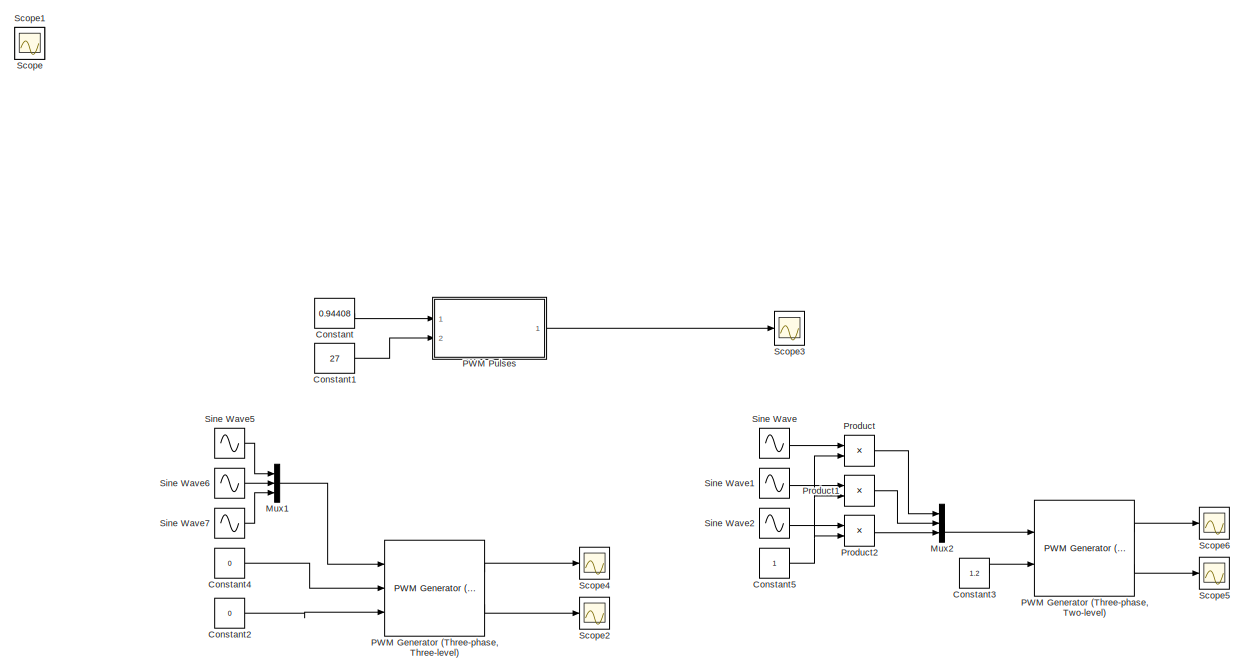
[diagram: root canvas - part 1/2, full width, top band]
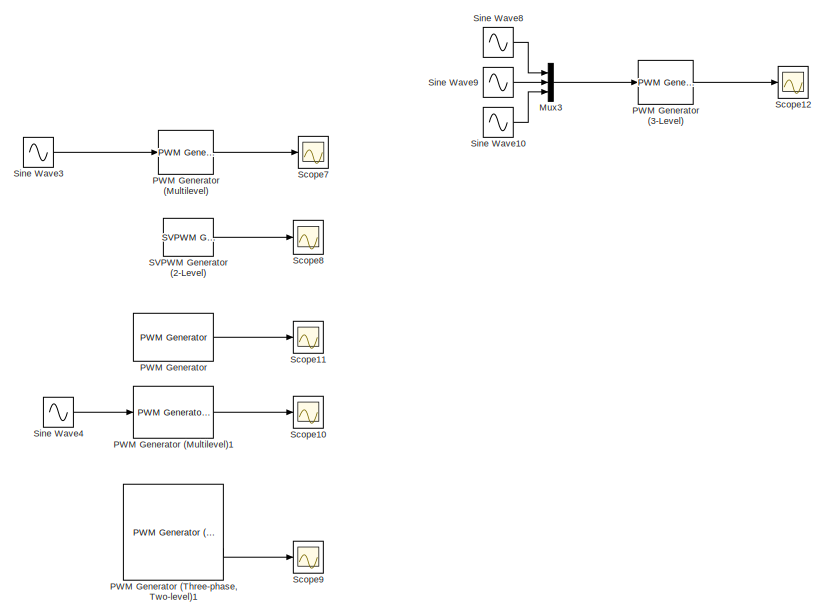
[diagram: root canvas - part 2/2, bottom center region]
MODEL slx_e3dcfff3d5a7
KIND model
CONFIG AbsTol = auto
CONFIG EnableMultiTasking = off
CONFIG FixedStep = 0.001
CONFIG MaxStep = auto
CONFIG MinStep = auto
CONFIG RelTol = 1e-3
CONFIG SampleTimeConstraint = Unconstrained
CONFIG SolverName = FixedStepAuto
CONFIG StartTime = 0.0
CONFIG StopTime = 5
WORKSPACE source: mxarray member
WORKSPACE Mf = 50
WORKSPACE mf = 1
WORKSPACE mf1 = 1
BLOCK [Constant] Constant
  Value = 0.94408
BLOCK [Constant] Constant1
  Value = 27
BLOCK [Constant] Constant2
  Commented = on
  Value = 0
BLOCK [Constant] Constant3
  Commented = on
  Value = 1.2
BLOCK [Constant] Constant4
  Commented = on
  Value = 0
BLOCK [Constant] Constant5
  Commented = on
BLOCK [Mux] Mux1
  Commented = on
  DisplayOption = bar
  Inputs = 3
  Ports = [3, 1]
BLOCK [Mux] Mux2
  Commented = on
  DisplayOption = bar
  Inputs = 3
  Ports = [3, 1]
BLOCK [Mux] Mux3
  Commented = on
  DisplayOption = bar
  Inputs = 3
  Ports = [3, 1]
BLOCK [Reference] PWM Generator  REF=eePwmGenerator/PWM Generator
  Commented = on
  Ports = [1, 1]
  SourceBlock = eePwmGenerator/PWM Generator
  SourceProductBaseCode = PS
  SourceType = PWM Generator
BLOCK [Reference] PWM Generator (3-Level)  REF=powerlib_meascontrol/Pulse & Signal
Generators/PWM Generator
(3-Level)
  Commented = on
  Ports = [1, 1]
  SourceBlock = powerlib_meascontrol/Pulse & Signal\nGenerators/PWM Generator\n(3-Level)
  SourceProductBaseCode = PS
  SourceType = PWM Generator (3-Level)
BLOCK [Reference] PWM Generator (Multilevel)  REF=powerlib_meascontrol/Pulse & Signal
Generators/PWM Generator
(Multilevel)
  Commented = on
  Ports = [1, 1]
  SourceBlock = powerlib_meascontrol/Pulse & Signal\nGenerators/PWM Generator\n(Multilevel)
  SourceProductBaseCode = PS
  SourceType = PWM Generator (Multilevel)
BLOCK [Reference] PWM Generator (Multilevel)1  REF=eePwmGeneratorMultilevel/PWM Generator
(Multilevel)
  Commented = on
  Ports = [1, 1]
  SourceBlock = eePwmGeneratorMultilevel/PWM Generator\n(Multilevel)
  SourceProductBaseCode = PS
  SourceType = PWM Generator (Multilevel)
BLOCK [Reference] PWM Generator (Three-phase, Three-level)  REF=eePwmGeneratorThreeLevel/PWM Generator
(Three-phase, Three-level)
  Commented = on
  Ports = [3, 2]
  SourceBlock = eePwmGeneratorThreeLevel/PWM Generator\n(Three-phase, Three-level)
  SourceProductBaseCode = PS
  SourceType = PWM Generator (three-phase, three-level)
BLOCK [Reference] PWM Generator (Three-phase, Two-level)  REF=eePwmGeneratorTwoLevel/PWM Generator
(Three-phase, Two-level)
  Commented = on
  Ports = [2, 2]
  SourceBlock = eePwmGeneratorTwoLevel/PWM Generator\n(Three-phase, Two-level)
  SourceProductBaseCode = PS
  SourceType = PWM Generator (three-phase, two-level)
BLOCK [Reference] PWM Generator (Three-phase, Two-level)1  REF=eePwmGeneratorTwoLevel/PWM Generator
(Three-phase, Two-level)
  Commented = on
  Ports = [2, 2]
  SourceBlock = eePwmGeneratorTwoLevel/PWM Generator\n(Three-phase, Two-level)
  SourceProductBaseCode = PS
  SourceType = PWM Generator (three-phase, two-level)
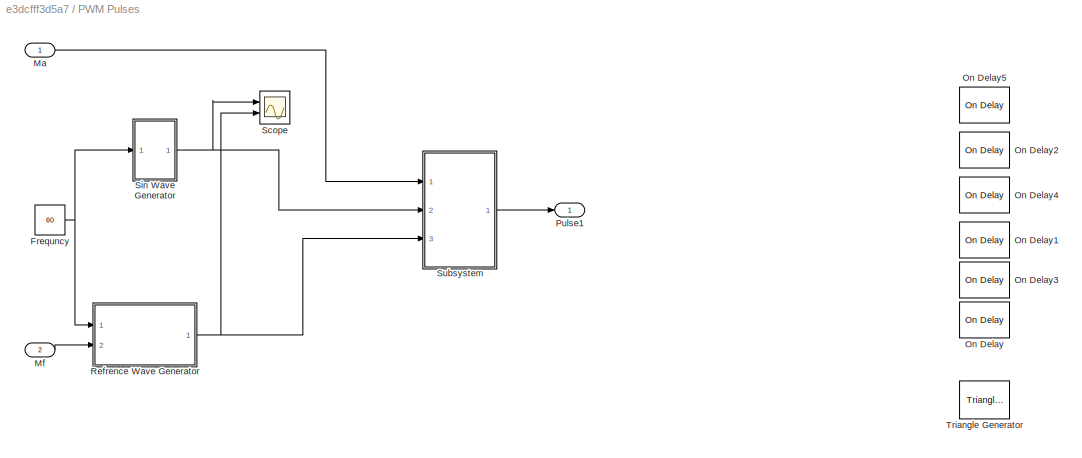
BLOCK [SubSystem] PWM Pulses
  Ports = [2, 1]
  RequestExecContextInheritance = off
BLOCK [Constant] PWM Pulses/Frequncy
  Value = 60
BLOCK [Inport] PWM Pulses/Ma
BLOCK [Inport] PWM Pulses/Mf
  Port = 2
BLOCK [Reference] PWM Pulses/On Delay  REF=powerlib_meascontrol/Logic/On Delay
  Commented = on
  Ports = [1, 1]
  SourceBlock = powerlib_meascontrol/Logic/On Delay
  SourceProductBaseCode = PS
  SourceType = On/Off Delay
BLOCK [Reference] PWM Pulses/On Delay1  REF=powerlib_meascontrol/Logic/On Delay
  Commented = on
  Ports = [1, 1]
  SourceBlock = powerlib_meascontrol/Logic/On Delay
  SourceProductBaseCode = PS
  SourceType = On/Off Delay
BLOCK [Reference] PWM Pulses/On Delay2  REF=powerlib_meascontrol/Logic/On Delay
  Commented = on
  Ports = [1, 1]
  SourceBlock = powerlib_meascontrol/Logic/On Delay
  SourceProductBaseCode = PS
  SourceType = On/Off Delay
BLOCK [Reference] PWM Pulses/On Delay3  REF=powerlib_meascontrol/Logic/On Delay
  Commented = on
  Ports = [1, 1]
  SourceBlock = powerlib_meascontrol/Logic/On Delay
  SourceProductBaseCode = PS
  SourceType = On/Off Delay
BLOCK [Reference] PWM Pulses/On Delay4  REF=powerlib_meascontrol/Logic/On Delay
  Commented = on
  Ports = [1, 1]
  SourceBlock = powerlib_meascontrol/Logic/On Delay
  SourceProductBaseCode = PS
  SourceType = On/Off Delay
BLOCK [Reference] PWM Pulses/On Delay5  REF=powerlib_meascontrol/Logic/On Delay
  Commented = on
  Ports = [1, 1]
  SourceBlock = powerlib_meascontrol/Logic/On Delay
  SourceProductBaseCode = PS
  SourceType = On/Off Delay
BLOCK [Outport] PWM Pulses/Pulse1
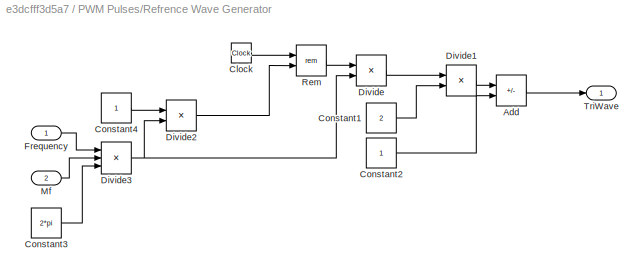
BLOCK [SubSystem] PWM Pulses/Refrence Wave Generator
  Ports = [2, 1]
  RequestExecContextInheritance = off
BLOCK [Sum] PWM Pulses/Refrence Wave Generator/Add
  IconShape = rectangular
  Inputs = +-
  Ports = [2, 1]
BLOCK [Clock] PWM Pulses/Refrence Wave Generator/Clock
BLOCK [Constant] PWM Pulses/Refrence Wave Generator/Constant1
  Value = 2
BLOCK [Constant] PWM Pulses/Refrence Wave Generator/Constant2
BLOCK [Constant] PWM Pulses/Refrence Wave Generator/Constant3
  Value = 2*pi
BLOCK [Constant] PWM Pulses/Refrence Wave Generator/Constant4
BLOCK [Product] PWM Pulses/Refrence Wave Generator/Divide
  Inputs = **
  Ports = [2, 1]
BLOCK [Product] PWM Pulses/Refrence Wave Generator/Divide1
  Inputs = **
  Ports = [2, 1]
BLOCK [Product] PWM Pulses/Refrence Wave Generator/Divide2
  Inputs = */
  Ports = [2, 1]
BLOCK [Product] PWM Pulses/Refrence Wave Generator/Divide3
  Inputs = **/
  Ports = [3, 1]
BLOCK [Inport] PWM Pulses/Refrence Wave Generator/Frequency
BLOCK [Inport] PWM Pulses/Refrence Wave Generator/Mf
  Port = 2
BLOCK [Math] PWM Pulses/Refrence Wave Generator/Rem
  Operator = rem
  Ports = [2, 1]
BLOCK [Outport] PWM Pulses/Refrence Wave Generator/TriWave
BLOCK [Scope] PWM Pulses/Scope
  Floating = off
  NumInputPorts = 2
  Ports = [2]
  ScopeSpecificationString = Simulink.scopes.TimeScopeBlockCfg('CurrentConfiguration', extmgr.ConfigurationSet(extmgr.Configuration('Core','General UI',true),extmgr.Configuration('Core','Source UI',true),extmgr.Configuration('Sources','WiredSimulink',true,'DataLoggingVariableName','ScopeData1'),extmgr.Configuration('Visuals','Time Domain',true,'SerializedDisplays',{struct('MinYLimReal','-1.25','MaxYLimReal','1.25','YLabelReal...<+1509ch>
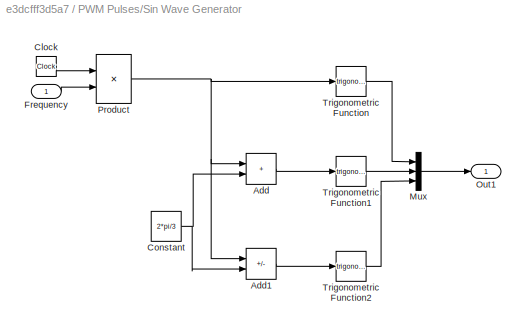
BLOCK [SubSystem] PWM Pulses/Sin Wave Generator
  Ports = [1, 1]
  RequestExecContextInheritance = off
BLOCK [Sum] PWM Pulses/Sin Wave Generator/Add
  IconShape = rectangular
  Ports = [2, 1]
BLOCK [Sum] PWM Pulses/Sin Wave Generator/Add1
  IconShape = rectangular
  Inputs = +-
  Ports = [2, 1]
BLOCK [Clock] PWM Pulses/Sin Wave Generator/Clock
BLOCK [Constant] PWM Pulses/Sin Wave Generator/Constant
  Value = 2*pi/3
BLOCK [Inport] PWM Pulses/Sin Wave Generator/Frequency
BLOCK [Mux] PWM Pulses/Sin Wave Generator/Mux
  DisplayOption = bar
  Inputs = 3
  Ports = [3, 1]
BLOCK [Outport] PWM Pulses/Sin Wave Generator/Out1
BLOCK [Product] PWM Pulses/Sin Wave Generator/Product
  Ports = [2, 1]
BLOCK [Trigonometry] PWM Pulses/Sin Wave Generator/Trigonometric Function
  Ports = [1, 1]
BLOCK [Trigonometry] PWM Pulses/Sin Wave Generator/Trigonometric Function1
  Ports = [1, 1]
BLOCK [Trigonometry] PWM Pulses/Sin Wave Generator/Trigonometric Function2
  Ports = [1, 1]
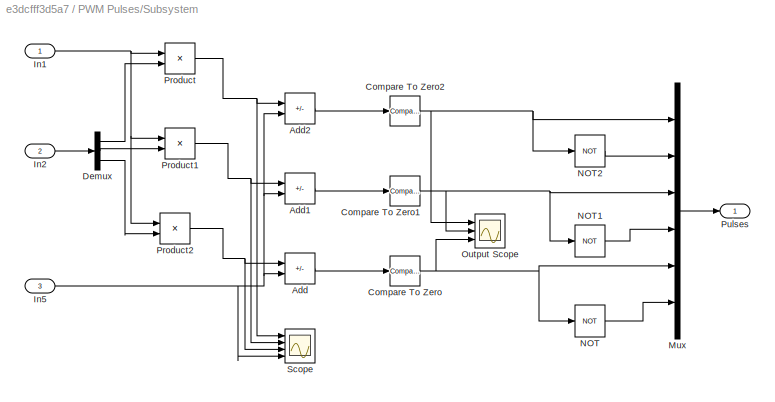
BLOCK [SubSystem] PWM Pulses/Subsystem
  Ports = [3, 1]
  RequestExecContextInheritance = off
BLOCK [Sum] PWM Pulses/Subsystem/Add
  IconShape = rectangular
  Inputs = -+
  Ports = [2, 1]
BLOCK [Sum] PWM Pulses/Subsystem/Add1
  IconShape = rectangular
  Inputs = -+
  Ports = [2, 1]
BLOCK [Sum] PWM Pulses/Subsystem/Add2
  IconShape = rectangular
  Inputs = -+
  Ports = [2, 1]
BLOCK [Reference] PWM Pulses/Subsystem/Compare To Zero  REF=simulink/Logic and Bit
Operations/Compare
To Zero
  Ports = [1, 1]
  SourceBlock = simulink/Logic and Bit\nOperations/Compare\nTo Zero
  SourceProductBaseCode = SL
  SourceType = Compare To Zero
BLOCK [Reference] PWM Pulses/Subsystem/Compare To Zero1  REF=simulink/Logic and Bit
Operations/Compare
To Zero
  Ports = [1, 1]
  SourceBlock = simulink/Logic and Bit\nOperations/Compare\nTo Zero
  SourceProductBaseCode = SL
  SourceType = Compare To Zero
BLOCK [Reference] PWM Pulses/Subsystem/Compare To Zero2  REF=simulink/Logic and Bit
Operations/Compare
To Zero
  Ports = [1, 1]
  SourceBlock = simulink/Logic and Bit\nOperations/Compare\nTo Zero
  SourceProductBaseCode = SL
  SourceType = Compare To Zero
BLOCK [Demux] PWM Pulses/Subsystem/Demux
  Outputs = 3
  Ports = [1, 3]
BLOCK [Inport] PWM Pulses/Subsystem/In1
BLOCK [Inport] PWM Pulses/Subsystem/In2
  Port = 2
BLOCK [Inport] PWM Pulses/Subsystem/In5
  Port = 3
BLOCK [Mux] PWM Pulses/Subsystem/Mux
  DisplayOption = bar
  Inputs = 6
  Ports = [6, 1]
BLOCK [Logic] PWM Pulses/Subsystem/NOT
  AllPortsSameDT = off
  IconShape = distinctive
  Operator = NOT
  OutDataTypeStr = boolean
  Ports = [1, 1]
BLOCK [Logic] PWM Pulses/Subsystem/NOT1
  AllPortsSameDT = off
  IconShape = distinctive
  Operator = NOT
  OutDataTypeStr = boolean
  Ports = [1, 1]
BLOCK [Logic] PWM Pulses/Subsystem/NOT2
  AllPortsSameDT = off
  IconShape = distinctive
  Operator = NOT
  OutDataTypeStr = boolean
  Ports = [1, 1]
BLOCK [Scope] PWM Pulses/Subsystem/Output Scope
  Floating = off
  NumInputPorts = 3
  Ports = [3]
  ScopeSpecificationString = Simulink.scopes.TimeScopeBlockCfg('CurrentConfiguration', extmgr.ConfigurationSet(extmgr.Configuration('Core','General UI',true),extmgr.Configuration('Core','Source UI',true),extmgr.Configuration('Sources','WiredSimulink',true,'DataLoggingVariableName','ScopeData1','DataLoggingSaveFormat','StructureWithTime','DataLoggingDecimation','1','DataLoggingDecimateData',true),extmgr.Configuration('Visuals'...<+3044ch>
BLOCK [Product] PWM Pulses/Subsystem/Product
  Ports = [2, 1]
BLOCK [Product] PWM Pulses/Subsystem/Product1
  Ports = [2, 1]
BLOCK [Product] PWM Pulses/Subsystem/Product2
  Ports = [2, 1]
BLOCK [Outport] PWM Pulses/Subsystem/Pulses
BLOCK [Scope] PWM Pulses/Subsystem/Scope
  Floating = off
  NumInputPorts = 4
  Ports = [4]
  ScopeSpecificationString = Simulink.scopes.TimeScopeBlockCfg('CurrentConfiguration', extmgr.ConfigurationSet(extmgr.Configuration('Core','General UI',true),extmgr.Configuration('Core','Source UI',true),extmgr.Configuration('Sources','WiredSimulink',true,'DataLoggingVariableName','ScopeData3'),extmgr.Configuration('Visuals','Time Domain',true,'SerializedDisplays',{struct('MinYLimReal','-1.25','MaxYLimReal','1.25','YLabelReal...<+1586ch>
BLOCK [Reference] PWM Pulses/Triangle Generator  REF=powerlib_meascontrol/Pulse & Signal
Generators/Triangle
Generator
  Commented = on
  Ports = [0, 1]
  SourceBlock = powerlib_meascontrol/Pulse & Signal\nGenerators/Triangle\nGenerator
  SourceProductBaseCode = PS
  SourceType = Triangle Generator
BLOCK [Product] Product
  Commented = on
  Ports = [2, 1]
BLOCK [Product] Product1
  Commented = on
  Ports = [2, 1]
BLOCK [Product] Product2
  Commented = on
  Ports = [2, 1]
BLOCK [Reference] SVPWM Generator (2-Level)  REF=powerlib_meascontrol/Pulse & Signal
Generators/SVPWM Generator
(2-Level)
  Commented = on
  Ports = [2, 1]
  SourceBlock = powerlib_meascontrol/Pulse & Signal\nGenerators/SVPWM Generator\n(2-Level)
  SourceProductBaseCode = PS
  SourceType = SVPWM Generator (2-Level)
BLOCK [Scope] Scope
  Floating = off
  IOType = viewer
  NumInputPorts = 1
  Ports = []
  ScopeSpecificationString = Simulink.scopes.TimeScopeBlockCfg('CurrentConfiguration', extmgr.ConfigurationSet(extmgr.Configuration('Core','General UI',true),extmgr.Configuration('Core','Source UI',true),extmgr.Configuration('Sources','WiredSimulink',true,'DataLoggingVariableName','ScopeData3'),extmgr.Configuration('Visuals','Time Domain',true,'SerializedDisplays',{struct('MinYLimReal','-1.25','MaxYLimReal','1.25','YLabelReal...<+1506ch>
BLOCK [Scope] Scope1
  Floating = off
  IOType = viewer
  NumInputPorts = 1
  Ports = []
  ScopeSpecificationString = Simulink.scopes.TimeScopeBlockCfg('CurrentConfiguration', extmgr.ConfigurationSet(extmgr.Configuration('Core','General UI',true),extmgr.Configuration('Core','Source UI',true),extmgr.Configuration('Sources','WiredSimulink',true,'DataLoggingVariableName','ScopeData2'),extmgr.Configuration('Visuals','Time Domain',true,'SerializedDisplays',{struct('MinYLimReal','-1.25','MaxYLimReal','1.25','YLabelReal...<+1387ch>
BLOCK [Scope] Scope10
  Commented = on
  Floating = off
  NumInputPorts = 1
  Ports = [1]
  ScopeSpecificationString = Simulink.scopes.TimeScopeBlockCfg('CurrentConfiguration', extmgr.ConfigurationSet(extmgr.Configuration('Core','General UI',true),extmgr.Configuration('Core','Source UI',true),extmgr.Configuration('Sources','WiredSimulink',true,'DataLoggingVariableName','ScopeData4'),extmgr.Configuration('Visuals','Time Domain',true,'SerializedDisplays',{struct('MinYLimReal','-1.25','MaxYLimReal','1.25','YLabelReal...<+1679ch>
BLOCK [Scope] Scope11
  Commented = on
  Floating = off
  NumInputPorts = 1
  Ports = [1]
  ScopeSpecificationString = Simulink.scopes.TimeScopeBlockCfg('CurrentConfiguration', extmgr.ConfigurationSet(extmgr.Configuration('Core','General UI',true),extmgr.Configuration('Core','Source UI',true),extmgr.Configuration('Sources','WiredSimulink',true,'DataLoggingVariableName','ScopeData5'),extmgr.Configuration('Visuals','Time Domain',true,'SerializedDisplays',{struct('MinYLimReal','-1.25','MaxYLimReal','1.25','YLabelReal...<+1623ch>
BLOCK [Scope] Scope12
  Commented = on
  Floating = off
  NumInputPorts = 1
  Ports = [1]
  ScopeSpecificationString = Simulink.scopes.TimeScopeBlockCfg('CurrentConfiguration', extmgr.ConfigurationSet(extmgr.Configuration('Core','General UI',true),extmgr.Configuration('Core','Source UI',true),extmgr.Configuration('Sources','WiredSimulink',true,'DataLoggingVariableName','ScopeData6'),extmgr.Configuration('Visuals','Time Domain',true,'SerializedDisplays',{struct('MinYLimReal','-1.25','MaxYLimReal','1.25','YLabelReal...<+1850ch>
BLOCK [Scope] Scope2
  Commented = on
  Floating = off
  NumInputPorts = 1
  Ports = [1]
  ScopeSpecificationString = Simulink.scopes.TimeScopeBlockCfg('CurrentConfiguration', extmgr.ConfigurationSet(extmgr.Configuration('Core','General UI',true),extmgr.Configuration('Core','Source UI',true),extmgr.Configuration('Sources','WiredSimulink',true,'DataLoggingVariableName','ScopeData1'),extmgr.Configuration('Visuals','Time Domain',true,'SerializedDisplays',{struct('MinYLimReal','-1.25','MaxYLimReal','1.25','YLabelReal...<+1623ch>
BLOCK [Scope] Scope3
  Floating = off
  NumInputPorts = 1
  Ports = [1]
  ScopeSpecificationString = Simulink.scopes.TimeScopeBlockCfg('CurrentConfiguration', extmgr.ConfigurationSet(extmgr.Configuration('Core','General UI',true),extmgr.Configuration('Core','Source UI',true),extmgr.Configuration('Sources','WiredSimulink',true,'DataLoggingVariableName','ScopeData1'),extmgr.Configuration('Visuals','Time Domain',true,'SerializedDisplays',{struct('MinYLimReal','-447.49999','MaxYLimReal','447.49999','...<+1604ch>
BLOCK [Scope] Scope4
  Commented = on
  Floating = off
  NumInputPorts = 1
  Ports = [1]
  ScopeSpecificationString = Simulink.scopes.TimeScopeBlockCfg('CurrentConfiguration', extmgr.ConfigurationSet(extmgr.Configuration('Core','General UI',true),extmgr.Configuration('Core','Source UI',true),extmgr.Configuration('Sources','WiredSimulink',true,'DataLoggingVariableName','ScopeData2'),extmgr.Configuration('Visuals','Time Domain',true,'SerializedDisplays',{struct('MinYLimReal','-1.25','MaxYLimReal','1.25','YLabelReal...<+1623ch>
BLOCK [Scope] Scope5
  Commented = on
  Floating = off
  NumInputPorts = 1
  Ports = [1]
  ScopeSpecificationString = Simulink.scopes.TimeScopeBlockCfg('CurrentConfiguration', extmgr.ConfigurationSet(extmgr.Configuration('Core','General UI',true),extmgr.Configuration('Core','Source UI',true),extmgr.Configuration('Sources','WiredSimulink',true,'DataLoggingVariableName','ScopeData3'),extmgr.Configuration('Visuals','Time Domain',true,'SerializedDisplays',{struct('MinYLimReal','-1.25','MaxYLimReal','1.25','YLabelReal...<+1642ch>
BLOCK [Scope] Scope6
  Commented = on
  Floating = off
  NumInputPorts = 1
  Ports = [1]
  ScopeSpecificationString = Simulink.scopes.TimeScopeBlockCfg('CurrentConfiguration', extmgr.ConfigurationSet(extmgr.Configuration('Core','General UI',true),extmgr.Configuration('Core','Source UI',true),extmgr.Configuration('Sources','WiredSimulink',true,'DataLoggingVariableName','ScopeData4'),extmgr.Configuration('Visuals','Time Domain',true,'SerializedDisplays',{struct('MinYLimReal','-1.25','MaxYLimReal','1.25','YLabelReal...<+1824ch>
BLOCK [Scope] Scope7
  Commented = on
  Floating = off
  NumInputPorts = 1
  Ports = [1]
  ScopeSpecificationString = Simulink.scopes.TimeScopeBlockCfg('CurrentConfiguration', extmgr.ConfigurationSet(extmgr.Configuration('Core','General UI',true),extmgr.Configuration('Core','Source UI',true),extmgr.Configuration('Sources','WiredSimulink',true,'DataLoggingVariableName','ScopeData1'),extmgr.Configuration('Visuals','Time Domain',true,'SerializedDisplays',{struct('MinYLimReal','-1.25','MaxYLimReal','1.25','YLabelReal...<+1850ch>
BLOCK [Scope] Scope8
  Commented = on
  Floating = off
  NumInputPorts = 1
  Ports = [1]
  ScopeSpecificationString = Simulink.scopes.TimeScopeBlockCfg('CurrentConfiguration', extmgr.ConfigurationSet(extmgr.Configuration('Core','General UI',true),extmgr.Configuration('Core','Source UI',true),extmgr.Configuration('Sources','WiredSimulink',true,'DataLoggingVariableName','ScopeData2'),extmgr.Configuration('Visuals','Time Domain',true,'SerializedDisplays',{struct('MinYLimReal','-1.25','MaxYLimReal','1.25','YLabelReal...<+1623ch>
BLOCK [Scope] Scope9
  Commented = on
  Floating = off
  NumInputPorts = 1
  Ports = [1]
  ScopeSpecificationString = Simulink.scopes.TimeScopeBlockCfg('CurrentConfiguration', extmgr.ConfigurationSet(extmgr.Configuration('Core','General UI',true),extmgr.Configuration('Core','Source UI',true),extmgr.Configuration('Sources','WiredSimulink',true,'DataLoggingVariableName','ScopeData3'),extmgr.Configuration('Visuals','Time Domain',true,'SerializedDisplays',{struct('MinYLimReal','-1.25','MaxYLimReal','1.25','YLabelReal...<+1623ch>
BLOCK [Sin] Sine Wave
  Commented = on
  Frequency = 60*2*pi
  Ports = [0, 1]
  SampleTime = 0
BLOCK [Sin] Sine Wave1
  Commented = on
  Frequency = 60*2*pi
  Phase = -2*pi/3
  Ports = [0, 1]
  SampleTime = 0
BLOCK [Sin] Sine Wave10
  Commented = on
  Frequency = 600*2*pi
  Phase = 2*pi/3
  Ports = [0, 1]
  SampleTime = 0
BLOCK [Sin] Sine Wave2
  Commented = on
  Frequency = 60*2*pi
  Phase = 2*pi/3
  Ports = [0, 1]
  SampleTime = 0
BLOCK [Sin] Sine Wave3
  Commented = on
  Ports = [0, 1]
  SampleTime = 0
BLOCK [Sin] Sine Wave4
  Commented = on
  Ports = [0, 1]
  SampleTime = 0
BLOCK [Sin] Sine Wave5
  Amplitude = 5
  Commented = on
  Frequency = 60
  Ports = [0, 1]
  SampleTime = 0
BLOCK [Sin] Sine Wave6
  Amplitude = 5
  Commented = on
  Frequency = 60
  Phase = -2*pi/3
  Ports = [0, 1]
  SampleTime = 0
BLOCK [Sin] Sine Wave7
  Amplitude = 5
  Commented = on
  Frequency = 60
  Phase = 2*pi/3
  Ports = [0, 1]
  SampleTime = 0
BLOCK [Sin] Sine Wave8
  Commented = on
  Frequency = 600*2*pi
  Ports = [0, 1]
  SampleTime = 0
BLOCK [Sin] Sine Wave9
  Commented = on
  Frequency = 600*2*pi
  Phase = -2*pi/3
  Ports = [0, 1]
  SampleTime = 0
LINE Constant1:1 -> PWM Pulses:2
LINE Constant2:1 -> PWM Generator (Three-phase, Three-level):3
LINE Constant3:1 -> PWM Generator (Three-phase, Two-level):2
LINE Constant4:1 -> PWM Generator (Three-phase, Three-level):2
NET Constant5:1 -> Product1:2, Product2:2, Product:2
LINE Constant:1 -> PWM Pulses:1
LINE Mux1:1 -> PWM Generator (Three-phase, Three-level):1
LINE Mux2:1 -> PWM Generator (Three-phase, Two-level):1
LINE Mux3:1 -> PWM Generator (3-Level):1
LINE PWM Generator (3-Level):1 -> Scope12:1
LINE PWM Generator (Multilevel)1:1 -> Scope10:1
LINE PWM Generator (Multilevel):1 -> Scope7:1
LINE PWM Generator (Three-phase, Three-level):1 -> Scope4:1
LINE PWM Generator (Three-phase, Three-level):2 -> Scope2:1
LINE PWM Generator (Three-phase, Two-level)1:2 -> Scope9:1
LINE PWM Generator (Three-phase, Two-level):1 -> Scope6:1
LINE PWM Generator (Three-phase, Two-level):2 -> Scope5:1
LINE PWM Generator:1 -> Scope11:1
NET PWM Pulses/Frequncy:1 -> PWM Pulses/Refrence Wave Generator:1, PWM Pulses/Sin Wave Generator:1
LINE PWM Pulses/Ma:1 -> PWM Pulses/Subsystem:1
LINE PWM Pulses/Mf:1 -> PWM Pulses/Refrence Wave Generator:2
LINE PWM Pulses/Refrence Wave Generator/Add:1 -> PWM Pulses/Refrence Wave Generator/TriWave:1
LINE PWM Pulses/Refrence Wave Generator/Clock:1 -> PWM Pulses/Refrence Wave Generator/Rem:1
LINE PWM Pulses/Refrence Wave Generator/Constant1:1 -> PWM Pulses/Refrence Wave Generator/Divide1:2
LINE PWM Pulses/Refrence Wave Generator/Constant2:1 -> PWM Pulses/Refrence Wave Generator/Add:2
LINE PWM Pulses/Refrence Wave Generator/Constant3:1 -> PWM Pulses/Refrence Wave Generator/Divide3:3
LINE PWM Pulses/Refrence Wave Generator/Constant4:1 -> PWM Pulses/Refrence Wave Generator/Divide2:1
LINE PWM Pulses/Refrence Wave Generator/Divide1:1 -> PWM Pulses/Refrence Wave Generator/Add:1
LINE PWM Pulses/Refrence Wave Generator/Divide2:1 -> PWM Pulses/Refrence Wave Generator/Rem:2
NET PWM Pulses/Refrence Wave Generator/Divide3:1 -> PWM Pulses/Refrence Wave Generator/Divide2:2, PWM Pulses/Refrence Wave Generator/Divide:2
LINE PWM Pulses/Refrence Wave Generator/Divide:1 -> PWM Pulses/Refrence Wave Generator/Divide1:1
LINE PWM Pulses/Refrence Wave Generator/Frequency:1 -> PWM Pulses/Refrence Wave Generator/Divide3:1
LINE PWM Pulses/Refrence Wave Generator/Mf:1 -> PWM Pulses/Refrence Wave Generator/Divide3:2
LINE PWM Pulses/Refrence Wave Generator/Rem:1 -> PWM Pulses/Refrence Wave Generator/Divide:1
NET PWM Pulses/Refrence Wave Generator:1 -> PWM Pulses/Scope:2, PWM Pulses/Subsystem:3
LINE PWM Pulses/Sin Wave Generator/Add1:1 -> PWM Pulses/Sin Wave Generator/Trigonometric Function2:1
LINE PWM Pulses/Sin Wave Generator/Add:1 -> PWM Pulses/Sin Wave Generator/Trigonometric Function1:1
LINE PWM Pulses/Sin Wave Generator/Clock:1 -> PWM Pulses/Sin Wave Generator/Product:1
NET PWM Pulses/Sin Wave Generator/Constant:1 -> PWM Pulses/Sin Wave Generator/Add1:2, PWM Pulses/Sin Wave Generator/Add:2
LINE PWM Pulses/Sin Wave Generator/Frequency:1 -> PWM Pulses/Sin Wave Generator/Product:2
LINE PWM Pulses/Sin Wave Generator/Mux:1 -> PWM Pulses/Sin Wave Generator/Out1:1
NET PWM Pulses/Sin Wave Generator/Product:1 -> PWM Pulses/Sin Wave Generator/Add1:1, PWM Pulses/Sin Wave Generator/Add:1, PWM Pulses/Sin Wave Generator/Trigonometric Function:1
LINE PWM Pulses/Sin Wave Generator/Trigonometric Function1:1 -> PWM Pulses/Sin Wave Generator/Mux:2
LINE PWM Pulses/Sin Wave Generator/Trigonometric Function2:1 -> PWM Pulses/Sin Wave Generator/Mux:3
LINE PWM Pulses/Sin Wave Generator/Trigonometric Function:1 -> PWM Pulses/Sin Wave Generator/Mux:1
NET PWM Pulses/Sin Wave Generator:1 -> PWM Pulses/Scope:1, PWM Pulses/Subsystem:2
LINE PWM Pulses/Subsystem/Add1:1 -> PWM Pulses/Subsystem/Compare To Zero1:1
LINE PWM Pulses/Subsystem/Add2:1 -> PWM Pulses/Subsystem/Compare To Zero2:1
LINE PWM Pulses/Subsystem/Add:1 -> PWM Pulses/Subsystem/Compare To Zero:1
NET PWM Pulses/Subsystem/Compare To Zero1:1 -> PWM Pulses/Subsystem/Mux:3, PWM Pulses/Subsystem/NOT1:1, PWM Pulses/Subsystem/Output Scope:2
NET PWM Pulses/Subsystem/Compare To Zero2:1 -> PWM Pulses/Subsystem/Mux:1, PWM Pulses/Subsystem/NOT2:1, PWM Pulses/Subsystem/Output Scope:1
NET PWM Pulses/Subsystem/Compare To Zero:1 -> PWM Pulses/Subsystem/Mux:5, PWM Pulses/Subsystem/NOT:1, PWM Pulses/Subsystem/Output Scope:3
LINE PWM Pulses/Subsystem/Demux:1 -> PWM Pulses/Subsystem/Product:2
LINE PWM Pulses/Subsystem/Demux:2 -> PWM Pulses/Subsystem/Product1:2
LINE PWM Pulses/Subsystem/Demux:3 -> PWM Pulses/Subsystem/Product2:2
NET PWM Pulses/Subsystem/In1:1 -> PWM Pulses/Subsystem/Product1:1, PWM Pulses/Subsystem/Product2:1, PWM Pulses/Subsystem/Product:1
LINE PWM Pulses/Subsystem/In2:1 -> PWM Pulses/Subsystem/Demux:1
NET PWM Pulses/Subsystem/In5:1 -> PWM Pulses/Subsystem/Add1:2, PWM Pulses/Subsystem/Add2:2, PWM Pulses/Subsystem/Add:2, PWM Pulses/Subsystem/Scope:4
LINE PWM Pulses/Subsystem/Mux:1 -> PWM Pulses/Subsystem/Pulses:1
LINE PWM Pulses/Subsystem/NOT1:1 -> PWM Pulses/Subsystem/Mux:4
LINE PWM Pulses/Subsystem/NOT2:1 -> PWM Pulses/Subsystem/Mux:2
LINE PWM Pulses/Subsystem/NOT:1 -> PWM Pulses/Subsystem/Mux:6
NET PWM Pulses/Subsystem/Product1:1 -> PWM Pulses/Subsystem/Add1:1, PWM Pulses/Subsystem/Scope:2
NET PWM Pulses/Subsystem/Product2:1 -> PWM Pulses/Subsystem/Add:1, PWM Pulses/Subsystem/Scope:3
NET PWM Pulses/Subsystem/Product:1 -> PWM Pulses/Subsystem/Add2:1, PWM Pulses/Subsystem/Scope:1
LINE PWM Pulses/Subsystem:1 -> PWM Pulses/Pulse1:1
LINE PWM Pulses:1 -> Scope3:1
LINE Product1:1 -> Mux2:2
LINE Product2:1 -> Mux2:3
LINE Product:1 -> Mux2:1
LINE SVPWM Generator (2-Level):1 -> Scope8:1
LINE Sine Wave10:1 -> Mux3:3
LINE Sine Wave1:1 -> Product1:1
LINE Sine Wave2:1 -> Product2:1
LINE Sine Wave3:1 -> PWM Generator (Multilevel):1
LINE Sine Wave4:1 -> PWM Generator (Multilevel)1:1
LINE Sine Wave5:1 -> Mux1:1
LINE Sine Wave6:1 -> Mux1:2
LINE Sine Wave7:1 -> Mux1:3
LINE Sine Wave8:1 -> Mux3:1
LINE Sine Wave9:1 -> Mux3:2
LINE Sine Wave:1 -> Product:1
note: NET lines group one-source signal fan-out (src -> all destinations, sorted); 1:1 wires keep LINE
